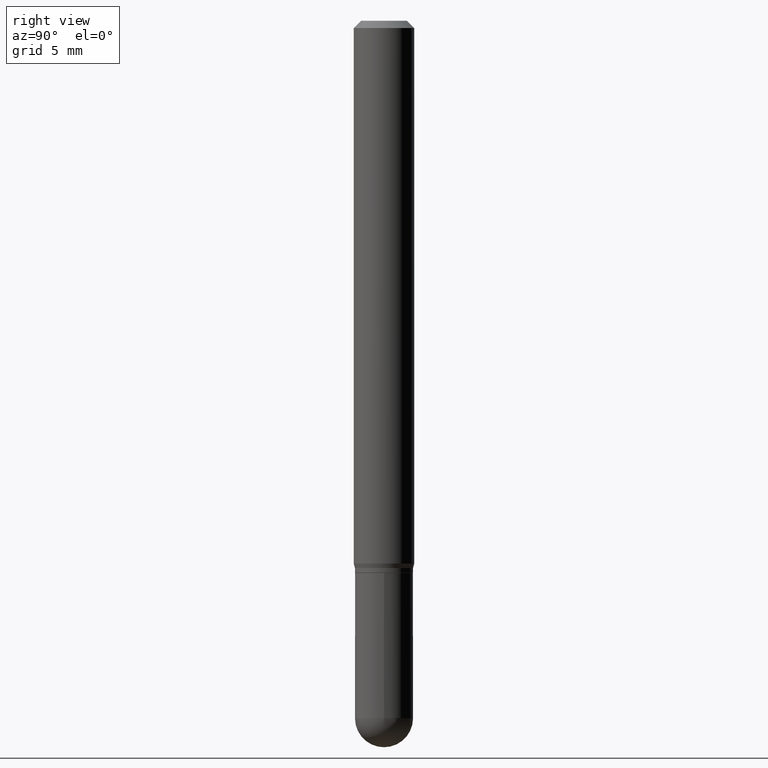
[diagram: clean part render]
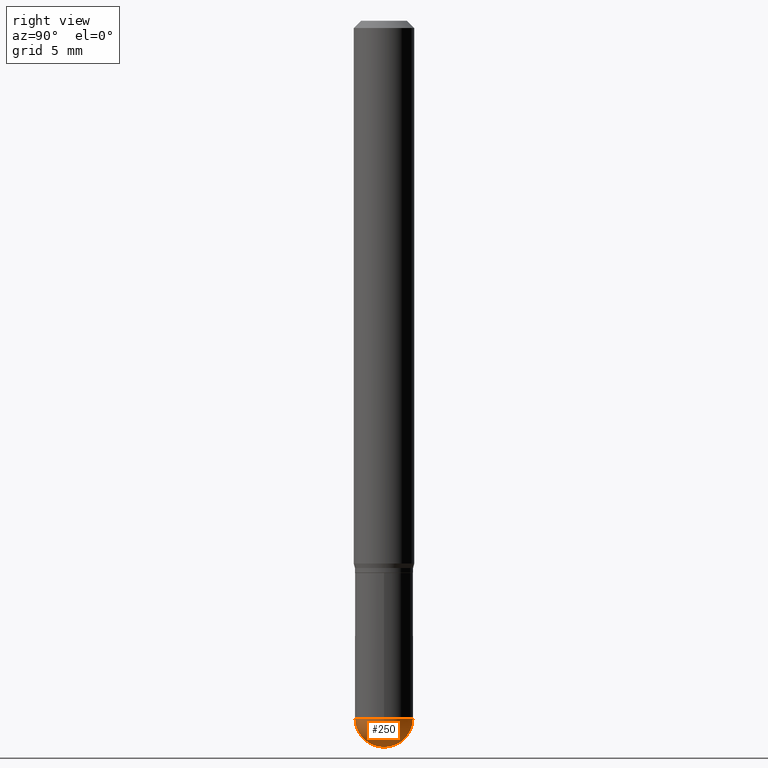
[diagram: same view with one face highlighted and labeled with its STEP entity id]
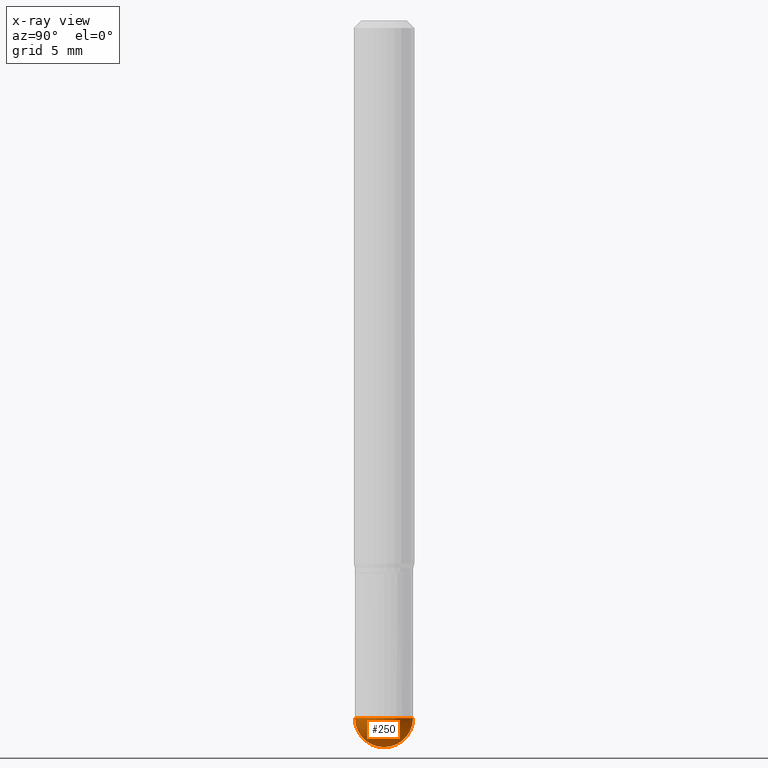
[diagram: x-ray of the same camera — body ghosted, the highlighted face saturated]
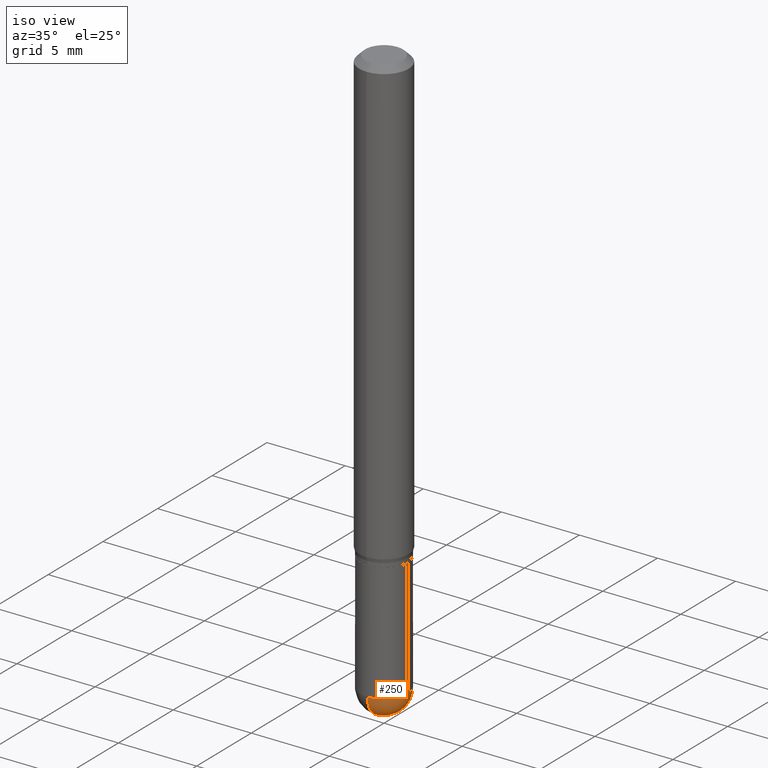
[diagram: same view with one face highlighted and labeled with its STEP entity id]
A machine part, right view. The second image highlights one B-rep face of the part: STEP entity #250.
The next image is the same camera in x-ray: the body ghosted, the highlighted face saturated — about 0% of this face is hidden behind the body in this view.
A second angle (iso view) of the same face is appended — the face is thin or edge-on in the first view.
In plain terms, the highlighted spherical surface has radius 1.524 mm.
Its self-contained STEP definition (entity closure, byte-faithful):
#4 = VERTEX_POINT ( 'NONE', #493 ) ;
#6 = VERTEX_POINT ( 'NONE', #62 ) ;
#16 = EDGE_CURVE ( 'NONE', #379, #372, #134, .T. ) ;
#27 = DIRECTION ( 'NONE',  ( -1.000000000000000000, 6.982962677686265922E-15, -4.883557194083112340E-29 ) ) ;
#35 = CARTESIAN_POINT ( 'NONE',  ( 4.189777606612110478E-16, 0.05999999999999495320, -1.440000000000000391 ) ) ;
#42 = EDGE_CURVE ( 'NONE', #4, #379, #401, .T. ) ;
#47 = ORIENTED_EDGE ( 'NONE', *, *, #373, .T. ) ;
#56 = SPHERICAL_SURFACE ( 'NONE', #119, 0.05999999999999995615 ) ;
#62 = CARTESIAN_POINT ( 'NONE',  ( 3.665637710410167850E-29, -5.240895948662160894E-15, -1.500000000000000222 ) ) ;
#64 = AXIS2_PLACEMENT_3D ( 'NONE', #239, #310, #274 ) ;
#103 = DIRECTION ( 'NONE',  ( -2.445468806185136597E-29, 3.491481338843145583E-15, 1.000000000000000000 ) ) ;
#115 = EDGE_LOOP ( 'NONE', ( #435, #47, #197, #391 ) ) ;
#119 = AXIS2_PLACEMENT_3D ( 'NONE', #449, #27, #335 ) ;
#133 = CARTESIAN_POINT ( 'NONE',  ( 3.521475080906597305E-29, -5.027733127934130649E-15, -1.440000000000000169 ) ) ;
#134 = CIRCLE ( 'NONE', #461, 0.06000000000000001166 ) ;
#149 = CARTESIAN_POINT ( 'NONE',  ( 3.516344083171520973E-29, -5.035081008729014505E-15, -1.440000000000000169 ) ) ;
#192 = DIRECTION ( 'NONE',  ( -7.105427357601001070E-15, -1.000000000000000000, 0.000000000000000000 ) ) ;
#197 = ORIENTED_EDGE ( 'NONE', *, *, #16, .F. ) ;
#239 = CARTESIAN_POINT ( 'NONE',  ( 3.521475080906597305E-29, -5.027733127934130649E-15, -1.440000000000000169 ) ) ;
#250 = ADVANCED_FACE ( 'NONE', ( #408 ), #56, .T. ) ;
#263 = DIRECTION ( 'NONE',  ( 1.000000000000000000, -6.982962677686265922E-15, 4.883557194083112340E-29 ) ) ;
#268 = DIRECTION ( 'NONE',  ( 6.982962677686265922E-15, 1.000000000000000000, 0.000000000000000000 ) ) ;
#270 = DIRECTION ( 'NONE',  ( -1.000000000000000000, 7.105427357601001070E-15, -4.926315508542082329E-29 ) ) ;
#274 = DIRECTION ( 'NONE',  ( 1.000000000000000000, -6.982962677686266711E-15, 0.000000000000000000 ) ) ;
#277 = CARTESIAN_POINT ( 'NONE',  ( 3.516344083171520973E-29, -5.035081008729014505E-15, -1.440000000000000169 ) ) ;
#299 = DIRECTION ( 'NONE',  ( 1.000000000000000000, -6.982962677686266711E-15, 0.000000000000000000 ) ) ;
#310 = DIRECTION ( 'NONE',  ( -2.445468806185136597E-29, 3.491481338843145583E-15, 1.000000000000000000 ) ) ;
#335 = DIRECTION ( 'NONE',  ( 6.982962677686265922E-15, 1.000000000000000000, -4.553079989440442247E-15 ) ) ;
#372 = VERTEX_POINT ( 'NONE', #35 ) ;
#373 = EDGE_CURVE ( 'NONE', #6, #372, #378, .T. ) ;
#378 = CIRCLE ( 'NONE', #413, 0.05999999999999995615 ) ;
#379 = VERTEX_POINT ( 'NONE', #465 ) ;
#391 = ORIENTED_EDGE ( 'NONE', *, *, #42, .F. ) ;
#401 = CIRCLE ( 'NONE', #64, 0.06000000000000001166 ) ;
#408 = FACE_OUTER_BOUND ( 'NONE', #115, .T. ) ;
#409 = AXIS2_PLACEMENT_3D ( 'NONE', #149, #270, #192 ) ;
#413 = AXIS2_PLACEMENT_3D ( 'NONE', #277, #263, #268 ) ;
#424 = CIRCLE ( 'NONE', #409, 0.05999999999999995615 ) ;
#435 = ORIENTED_EDGE ( 'NONE', *, *, #455, .F. ) ;
#449 = CARTESIAN_POINT ( 'NONE',  ( 3.516344083171520973E-29, -5.035081008729014505E-15, -1.440000000000000169 ) ) ;
#455 = EDGE_CURVE ( 'NONE', #6, #4, #424, .T. ) ;
#461 = AXIS2_PLACEMENT_3D ( 'NONE', #133, #103, #299 ) ;
#465 = CARTESIAN_POINT ( 'NONE',  ( 0.06000000000000001166, -4.922988687768835701E-15, -1.440000000000000169 ) ) ;
#493 = CARTESIAN_POINT ( 'NONE',  ( -4.263256414560247449E-16, -0.06000000000000501460, -1.439999999999999947 ) ) ;